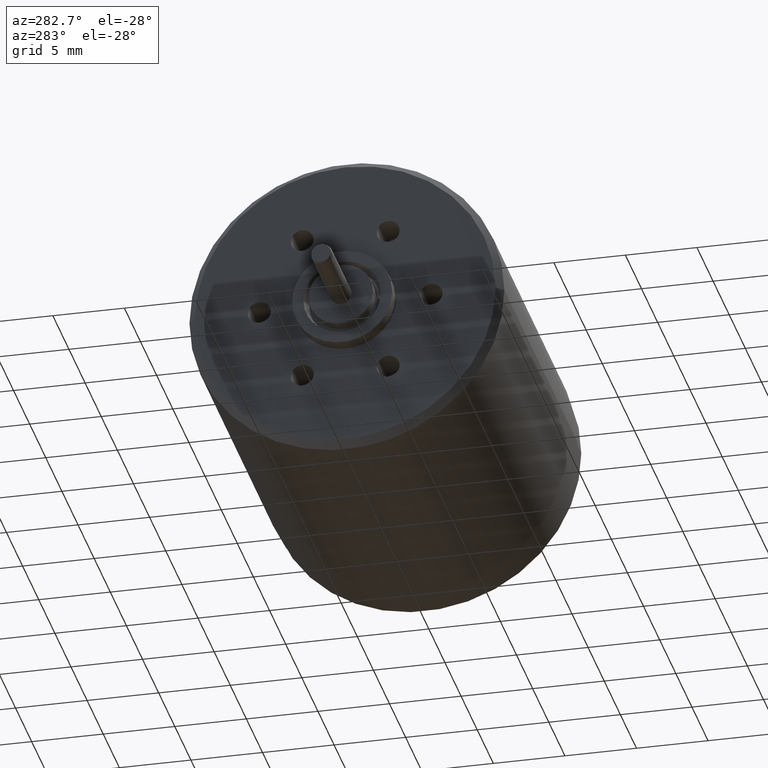
[diagram: clean part render]
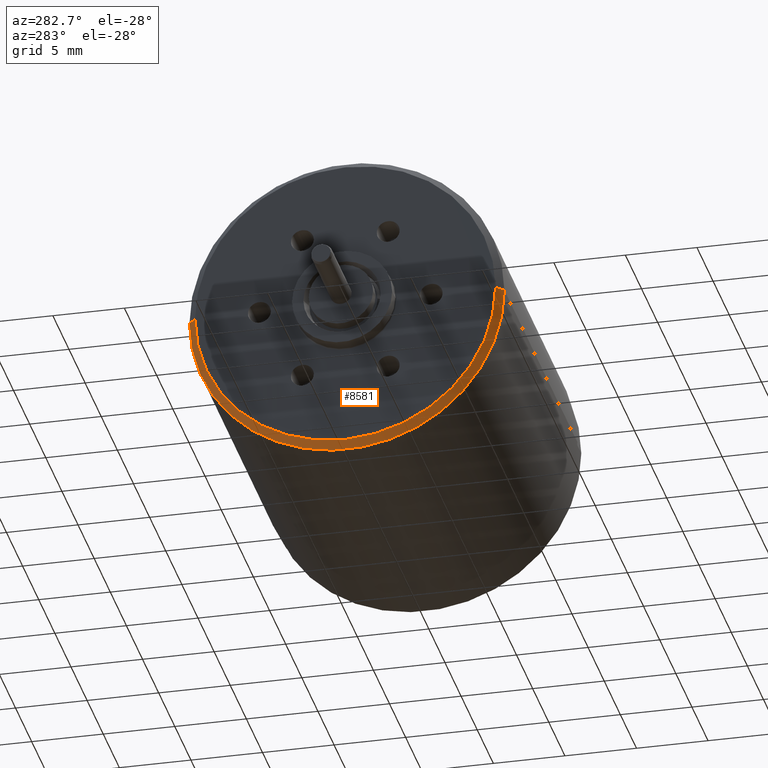
[diagram: same view with one face highlighted and labeled with its STEP entity id]
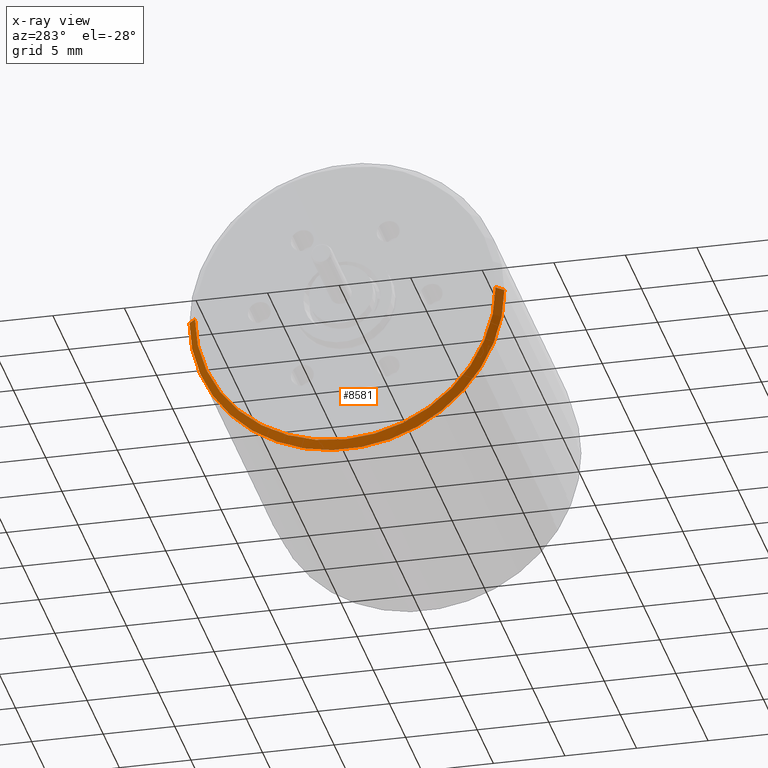
[diagram: x-ray of the same camera — body ghosted, the highlighted face saturated]
A machine part, auxiliary view. The second image highlights one B-rep face of the part: STEP entity #8581.
The next image is the same camera in x-ray: the body ghosted, the highlighted face saturated — about 0% of this face is hidden behind the body in this view.
In plain terms, the highlighted conical surface has half-angle 45 deg.
Its self-contained STEP definition (entity closure, byte-faithful):
#2433=CARTESIAN_POINT('',(-1.54E1,1.413242406229E-14,0.E0));
#2434=DIRECTION('',(-1.E0,0.E0,0.E0));
#2435=DIRECTION('',(0.E0,1.E0,0.E0));
#2436=AXIS2_PLACEMENT_3D('',#2433,#2434,#2435);
#2443=CARTESIAN_POINT('',(-1.59E1,1.131700767162E-14,-2.300296267738E-14));
#2444=DIRECTION('',(-1.E0,0.E0,0.E0));
#2445=DIRECTION('',(0.E0,1.E0,0.E0));
#2446=AXIS2_PLACEMENT_3D('',#2443,#2444,#2445);
#2523=DIRECTION('',(7.071067811865E-1,7.071067811865E-1,-6.158145212568E-10));
#2524=VECTOR('',#2523,7.071067811689E-1);
#2525=CARTESIAN_POINT('',(-1.59E1,1.05E1,-1.579382690959E-14));
#2526=LINE('',#2525,#2524);
#2527=DIRECTION('',(-7.071067811865E-1,7.071067811865E-1,-6.158242346931E-10));
#2528=VECTOR('',#2527,7.071067811689E-1);
#2529=CARTESIAN_POINT('',(-1.540000000001E1,-1.099999999999E1,
4.354631287217E-10));
#2530=LINE('',#2529,#2528);
#4437=CARTESIAN_POINT('',(-1.59E1,1.05E1,-1.579382690959E-14));
#4438=CARTESIAN_POINT('',(-1.540000000001E1,1.099999999999E1,
-4.354624177498E-10));
#4439=VERTEX_POINT('',#4437);
#4440=VERTEX_POINT('',#4438);
#4445=CARTESIAN_POINT('',(-1.59E1,-1.05E1,1.505264464446E-14));
#4446=VERTEX_POINT('',#4445);
#4487=CARTESIAN_POINT('',(-1.540000000001E1,-1.099999999999E1,
4.354631287217E-10));
#4488=VERTEX_POINT('',#4487);
#8567=CARTESIAN_POINT('',(-1.565E1,1.128639150165E-14,-2.300296267738E-14));
#8568=DIRECTION('',(1.E0,0.E0,0.E0));
#8569=DIRECTION('',(0.E0,0.E0,-1.E0));
#8570=AXIS2_PLACEMENT_3D('',#8567,#8568,#8569);
#8571=CONICAL_SURFACE('',#8570,1.075E1,4.5E1);
#8573=ORIENTED_EDGE('',*,*,#8572,.T.);
#8575=ORIENTED_EDGE('',*,*,#8574,.F.);
#8576=ORIENTED_EDGE('',*,*,#8557,.F.);
#8578=ORIENTED_EDGE('',*,*,#8577,.F.);
#8579=EDGE_LOOP('',(#8573,#8575,#8576,#8578));
#8580=FACE_OUTER_BOUND('',#8579,.F.);
#8581=ADVANCED_FACE('',(#8580),#8571,.T.);
#2437=CIRCLE('',#2436,1.1E1);
#2447=CIRCLE('',#2446,1.05E1);
#8557=EDGE_CURVE('',#4440,#4488,#2437,.T.);
#8572=EDGE_CURVE('',#4439,#4446,#2447,.T.);
#8574=EDGE_CURVE('',#4488,#4446,#2530,.T.);
#8577=EDGE_CURVE('',#4439,#4440,#2526,.T.);